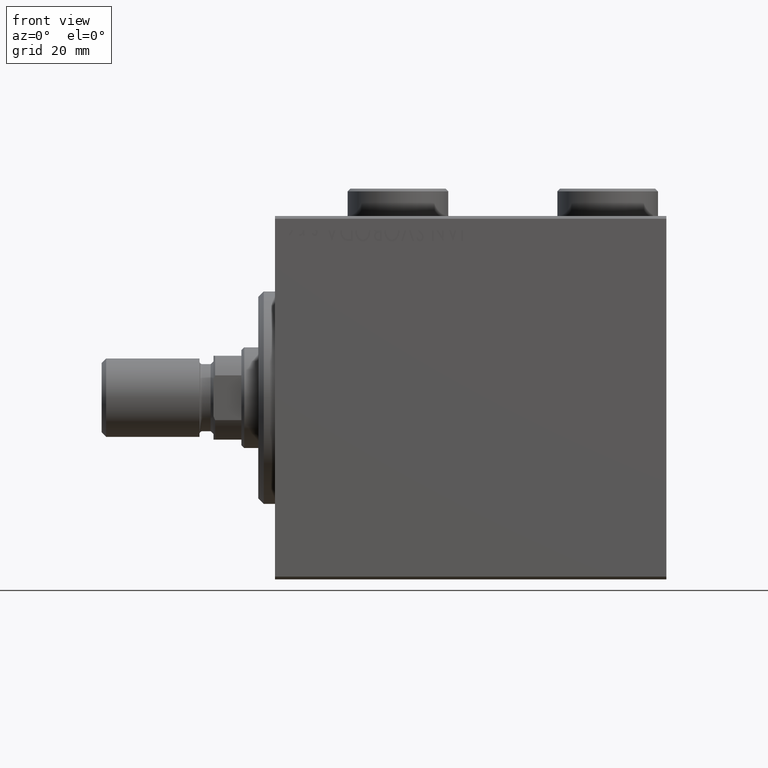
[diagram: clean part render]
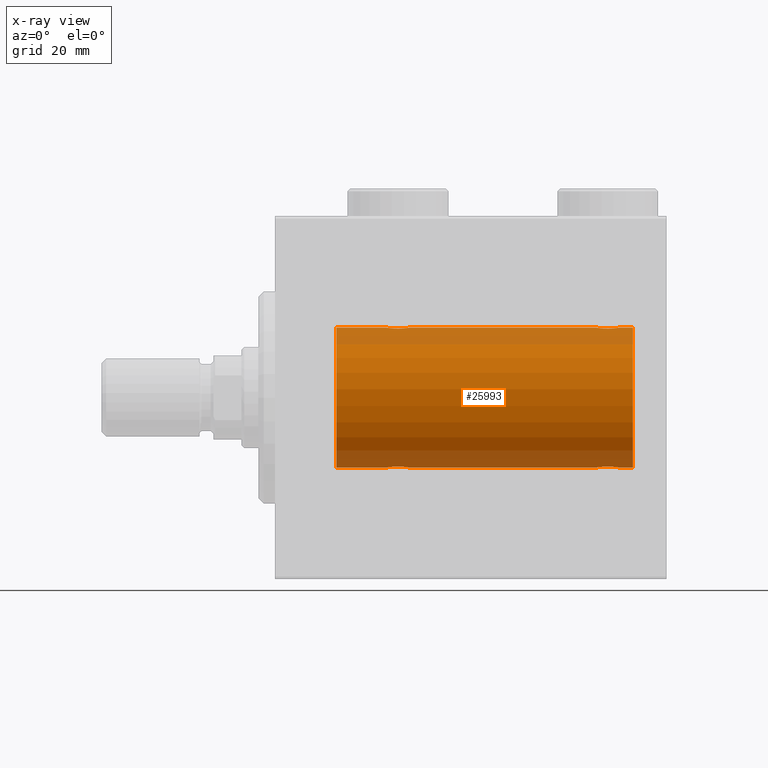
[diagram: x-ray — body ghosted, one internal face saturated and labeled with its STEP entity id]
A machine part, front view, then the same camera in x-ray: the body is ghosted and one INTERNAL B-rep face — a face not visible from any outside direction — is saturated and labeled: STEP entity #25993.
In plain terms, the highlighted cylindrical surface (partial cylindrical patch) has radius 12.5 mm, axis along (-1, -0, -0).
Its self-contained STEP definition (entity closure, byte-faithful):
#151 = CARTESIAN_POINT ( 'NONE',  ( 60.01961472357874783, -1.935716533151644381, -12.34923763528284724 ) ) ;
#622 = EDGE_CURVE ( 'NONE', #22544, #769, #40746, .T. ) ;
#769 = VERTEX_POINT ( 'NONE', #32887 ) ;
#772 = EDGE_CURVE ( 'NONE', #38798, #22544, #40110, .T. ) ;
#838 = CARTESIAN_POINT ( 'NONE',  ( 58.85574721202270609, -1.897913903092051324, -12.35518060345725289 ) ) ;
#1539 = B_SPLINE_CURVE_WITH_KNOTS ( 'NONE', 3,
 ( #25505, #24824, #39006, #32479, #18311, #39691, #7827, #25059, #28533, #18537, #25283, #22029, #151, #7376, #10649, #45999, #39464, #36210, #838, #4337, #29211, #43403, #3424, #11568, #38783, #12243, #4783, #22702 ),
 .UNSPECIFIED., .F., .F.,
 ( 4, 2, 2, 2, 2, 2, 2, 2, 2, 2, 2, 2, 2, 4 ),
 ( 0.006262980370572173230, 0.007045658964677369018, 0.007436998261729971249, 0.007828337558782573480, 0.008219676855835175711, 0.008611016152887777941, 0.009002355449940380172, 0.009393694746992982403, 0.009785034044045584634, 0.01017637334109818686, 0.01056771263815078910, 0.01095905193520339133, 0.01174173052930859579, 0.01252440912341380025 ),
 .UNSPECIFIED. ) ;
#1660 = CARTESIAN_POINT ( 'NONE',  ( 20.20214393531741237, -0.8858253204748024467, 12.46915613403961309 ) ) ;
#1817 = CARTESIAN_POINT ( 'NONE',  ( 22.51961472357873717, -1.935716533151642826, -12.34923763528285257 ) ) ;
#1842 = DIRECTION ( 'NONE',  ( -1.000000000000000000, -0.000000000000000000, -0.000000000000000000 ) ) ;
#1893 = CARTESIAN_POINT ( 'NONE',  ( 23.74662136620892383, -1.008535157355842538, 12.46157701909767646 ) ) ;
#2361 = CARTESIAN_POINT ( 'NONE',  ( 22.64425278797729391, -1.897913903092048438, 12.35518060345725111 ) ) ;
#2652 = CARTESIAN_POINT ( 'NONE',  ( 58.49654425923307599, -1.734959850168409812, 12.37922718965050706 ) ) ;
#3120 = CARTESIAN_POINT ( 'NONE',  ( 58.98038527642127349, -1.935716533151643493, 12.34923763528284901 ) ) ;
#3128 = DIRECTION ( 'NONE',  ( -1.000000000000000000, -0.000000000000000000, -0.000000000000000000 ) ) ;
#3424 = CARTESIAN_POINT ( 'NONE',  ( 58.17883287148557514, -1.507135374967702557, -12.40915432986587241 ) ) ;
#3733 = DIRECTION ( 'NONE',  ( -1.000000000000000000, -0.000000000000000000, -0.000000000000000000 ) ) ;
#3954 = DIRECTION ( 'NONE',  ( 0.000000000000000000, 0.000000000000000000, 1.000000000000000000 ) ) ;
#4135 = CARTESIAN_POINT ( 'NONE',  ( 64.00000000000000000, 0.000000000000000000, 12.50000000000000000 ) ) ;
#4337 = CARTESIAN_POINT ( 'NONE',  ( 58.61383846120568109, -1.797736511708066143, -12.37015393445320655 ) ) ;
#4743 = ORIENTED_EDGE ( 'NONE', *, *, #622, .T. ) ;
#4783 = CARTESIAN_POINT ( 'NONE',  ( 57.50000000000000000, -0.2646816682749856819, -12.50000000000000711 ) ) ;
#5103 = VERTEX_POINT ( 'NONE', #22440 ) ;
#5391 = ORIENTED_EDGE ( 'NONE', *, *, #45182, .T. ) ;
#5621 = VERTEX_POINT ( 'NONE', #34575 ) ;
#5716 = EDGE_CURVE ( 'NONE', #5621, #38798, #1539, .T. ) ;
#5804 = CARTESIAN_POINT ( 'NONE',  ( 21.86910032676576421, -2.000082296475566679, -12.33894933996983490 ) ) ;
#5827 = LINE ( 'NONE', #30467, #31189 ) ;
#5875 = CARTESIAN_POINT ( 'NONE',  ( 21.35356103036408371, -1.897190184049189599, 12.35529285772521391 ) ) ;
#5932 = CARTESIAN_POINT ( 'NONE',  ( 60.50099792098509255, -1.736403706023274651, 12.37902502246767966 ) ) ;
#6032 = CARTESIAN_POINT ( 'NONE',  ( 23.32299943107732432, -1.505544071529935080, -12.40934942683853848 ) ) ;
#6065 = DIRECTION ( 'NONE',  ( 0.000000000000000000, 0.000000000000000000, 1.000000000000000000 ) ) ;
#6201 = CIRCLE ( 'NONE', #18843, 12.50000000000000000 ) ;
#6705 = ORIENTED_EDGE ( 'NONE', *, *, #16767, .F. ) ;
#7021 = VERTEX_POINT ( 'NONE', #25628 ) ;
#7376 = CARTESIAN_POINT ( 'NONE',  ( 59.76391373102438109, -1.986793270638201214, -12.34112317291865324 ) ) ;
#7531 = CARTESIAN_POINT ( 'NONE',  ( 61.44665679898378130, -0.5275951738695680016, 12.49118442338578205 ) ) ;
#7827 = CARTESIAN_POINT ( 'NONE',  ( 61.00722151467995502, -1.321088093821077614, -12.43033959299025248 ) ) ;
#8250 = DIRECTION ( 'NONE',  ( -1.000000000000000000, -0.000000000000000000, -0.000000000000000000 ) ) ;
#8376 = DIRECTION ( 'NONE',  ( 0.000000000000000000, 0.000000000000000000, 1.000000000000000000 ) ) ;
#8628 = DIRECTION ( 'NONE',  ( -1.000000000000000000, -0.000000000000000000, -0.000000000000000000 ) ) ;
#8664 = CARTESIAN_POINT ( 'NONE',  ( 19.99999999999999645, -7.265724481447607133E-23, 12.50000000000000000 ) ) ;
#8781 = ORIENTED_EDGE ( 'NONE', *, *, #37475, .T. ) ;
#8890 = CARTESIAN_POINT ( 'NONE',  ( 22.88616153879432602, -1.797736511708064144, 12.37015393445320299 ) ) ;
#9307 = CARTESIAN_POINT ( 'NONE',  ( 10.99999999999999645, 0.000000000000000000, 0.000000000000000000 ) ) ;
#9432 = CARTESIAN_POINT ( 'NONE',  ( 60.01693726697627085, -1.936441098420706775, 12.34912369794528608 ) ) ;
#9528 = CARTESIAN_POINT ( 'NONE',  ( 23.79785606468258052, -0.8858253204748003373, -12.46915613403960954 ) ) ;
#10122 = CARTESIAN_POINT ( 'NONE',  ( 58.61125274202960611, -1.796480516834688679, 12.37033750336835425 ) ) ;
#10649 = CARTESIAN_POINT ( 'NONE',  ( 59.63340250451296498, -1.999916920503821194, -12.33897614545467825 ) ) ;
#11219 = VECTOR ( 'NONE', #8628, 1000.000000000000000 ) ;
#11266 = CARTESIAN_POINT ( 'NONE',  ( 61.50000000000000711, -7.215738317004035941E-16, 12.50000000000000000 ) ) ;
#11568 = CARTESIAN_POINT ( 'NONE',  ( 57.90255225308975895, -1.231226695485371669, -12.44059298055988094 ) ) ;
#12243 = CARTESIAN_POINT ( 'NONE',  ( 57.55334320101621159, -0.5275951738695725535, -12.49118442338578561 ) ) ;
#12373 = CARTESIAN_POINT ( 'NONE',  ( 61.50000000000000711, -7.215738317004035941E-16, 12.50000000000000000 ) ) ;
#12403 = CARTESIAN_POINT ( 'NONE',  ( 22.13089967323422869, -2.000082296475568011, 12.33894933996983134 ) ) ;
#12449 = CARTESIAN_POINT ( 'NONE',  ( 64.00000000000000000, 1.530808498934191521E-15, -12.50000000000000000 ) ) ;
#12561 = CARTESIAN_POINT ( 'NONE',  ( 21.73906502714393341, -1.987194304939077671, -12.34105826212746138 ) ) ;
#12790 = CARTESIAN_POINT ( 'NONE',  ( 20.67883287148555382, -1.507135374967699670, -12.40915432986587064 ) ) ;
#12921 = CARTESIAN_POINT ( 'NONE',  ( 57.99277848532008051, -1.321088093821082721, 12.43033959299025426 ) ) ;
#12957 = CARTESIAN_POINT ( 'NONE',  ( 57.50000000000000000, -7.266434456262306043E-23, 12.50000000000000000 ) ) ;
#13021 = CARTESIAN_POINT ( 'NONE',  ( 21.35574721202270254, -1.897913903092047327, -12.35518060345725289 ) ) ;
#14662 = CARTESIAN_POINT ( 'NONE',  ( 24.00000000000000000, -4.527848004210791175E-16, 12.50000000000000000 ) ) ;
#14751 = CARTESIAN_POINT ( 'NONE',  ( 60.82116712851446749, -1.507135374967701003, 12.40915432986587419 ) ) ;
#14758 = CARTESIAN_POINT ( 'NONE',  ( 64.00000000000000000, 0.000000000000000000, 12.50000000000000000 ) ) ;
#14907 = FACE_OUTER_BOUND ( 'NONE', #27749, .T. ) ;
#14942 = CARTESIAN_POINT ( 'NONE',  ( 64.00000000000000000, 1.530808498934191521E-15, -12.50000000000000000 ) ) ;
#15162 = LINE ( 'NONE', #14942, #11219 ) ;
#15580 = CARTESIAN_POINT ( 'NONE',  ( 20.00000000000000000, -0.2646816682749822958, -12.50000000000000000 ) ) ;
#15800 = EDGE_CURVE ( 'NONE', #769, #7021, #26873, .T. ) ;
#15875 = CARTESIAN_POINT ( 'NONE',  ( 19.99999999999999289, -0.2612140938986765581, 12.50000000000000000 ) ) ;
#16040 = CARTESIAN_POINT ( 'NONE',  ( 23.94744340572329833, -0.5247436444070328054, -12.49130933415156619 ) ) ;
#16113 = CARTESIAN_POINT ( 'NONE',  ( 23.94665679898380617, -0.5275951738695671134, 12.49118442338578561 ) ) ;
#16505 = CARTESIAN_POINT ( 'NONE',  ( 20.05334320101619738, -0.5275951738695662252, -12.49118442338578561 ) ) ;
#16576 = CARTESIAN_POINT ( 'NONE',  ( 23.59744774691023039, -1.231226695485369893, 12.44059298055988272 ) ) ;
#16640 = LINE ( 'NONE', #34297, #22199 ) ;
#16767 = EDGE_CURVE ( 'NONE', #43928, #26339, #6201, .T. ) ;
#17317 = CARTESIAN_POINT ( 'NONE',  ( 59.36659749548705634, -1.999916920503820750, 12.33897614545467469 ) ) ;
#17457 = VERTEX_POINT ( 'NONE', #12373 ) ;
#18001 = CARTESIAN_POINT ( 'NONE',  ( 61.24662136620892028, -1.008535157355842760, 12.46157701909767468 ) ) ;
#18311 = CARTESIAN_POINT ( 'NONE',  ( 61.23563078019578398, -1.002396200863560738, -12.46022444231050841 ) ) ;
#18537 = CARTESIAN_POINT ( 'NONE',  ( 60.50345574076694533, -1.734959850168411366, -12.37922718965050883 ) ) ;
#18843 = AXIS2_PLACEMENT_3D ( 'NONE', #27454, #44913, #6065 ) ;
#19138 = CARTESIAN_POINT ( 'NONE',  ( 20.49277848532005919, -1.321088093821079834, 12.43033959299025071 ) ) ;
#19368 = CARTESIAN_POINT ( 'NONE',  ( 20.05255659427670167, -0.5247436444070346928, 12.49130933415156619 ) ) ;
#19520 = CARTESIAN_POINT ( 'NONE',  ( 23.22027149897420628, -1.589951752150275732, -12.39868561261689273 ) ) ;
#19757 = CARTESIAN_POINT ( 'NONE',  ( 22.88874725797039389, -1.796480516834687347, -12.37033750336835247 ) ) ;
#19992 = CARTESIAN_POINT ( 'NONE',  ( 20.99900207901491811, -1.736403706023270654, -12.37902502246767966 ) ) ;
#20129 = CARTESIAN_POINT ( 'NONE',  ( 57.76436921980423733, -1.002396200863562736, 12.46022444231050663 ) ) ;
#20224 = CARTESIAN_POINT ( 'NONE',  ( 20.25337863379106551, -1.008535157355840761, -12.46157701909767646 ) ) ;
#20353 = CARTESIAN_POINT ( 'NONE',  ( 57.70214393531741592, -0.8858253204748025578, 12.46915613403960954 ) ) ;
#20810 = VERTEX_POINT ( 'NONE', #14662 ) ;
#21580 = ORIENTED_EDGE ( 'NONE', *, *, #42904, .T. ) ;
#21656 = CYLINDRICAL_SURFACE ( 'NONE', #39166, 12.50000000000000000 ) ;
#21850 = ORIENTED_EDGE ( 'NONE', *, *, #41816, .F. ) ;
#22029 = CARTESIAN_POINT ( 'NONE',  ( 60.14643896963591629, -1.897190184049190043, -12.35529285772521391 ) ) ;
#22199 = VECTOR ( 'NONE', #30813, 1000.000000000000000 ) ;
#22419 = B_SPLINE_CURVE_WITH_KNOTS ( 'NONE', 3,
 ( #8664, #15875, #19368, #1660, #40757, #30046, #19138, #34233, #44715, #23558, #34000, #5875, #44242, #44481, #37742, #12403, #41218, #40984, #2361, #8890, #23081, #27023, #33761, #16576, #1893, #16113, #30747, #26796 ),
 .UNSPECIFIED., .F., .F.,
 ( 4, 2, 2, 2, 2, 2, 2, 2, 2, 2, 2, 2, 2, 4 ),
 ( 0.006262980370572172363, 0.007045658964677369886, 0.007436998261729971249, 0.007828337558782571745, 0.008219676855835172241, 0.008611016152887774472, 0.009002355449940373233, 0.009393694746992975464, 0.009785034044045575960, 0.01017637334109817646, 0.01056771263815077869, 0.01095905193520337918, 0.01174173052930858538, 0.01252440912341379504 ),
 .UNSPECIFIED. ) ;
#22440 = CARTESIAN_POINT ( 'NONE',  ( 10.99999999999999645, 0.000000000000000000, 12.50000000000000000 ) ) ;
#22447 = ORIENTED_EDGE ( 'NONE', *, *, #15800, .T. ) ;
#22544 = VERTEX_POINT ( 'NONE', #45569 ) ;
#22702 = CARTESIAN_POINT ( 'NONE',  ( 57.50000000000000000, -7.533308568696040923E-15, -12.50000000000000000 ) ) ;
#23012 = CARTESIAN_POINT ( 'NONE',  ( 24.00000000000000000, 1.530808426277417854E-15, -12.50000000000000000 ) ) ;
#23081 = CARTESIAN_POINT ( 'NONE',  ( 23.00099792098508189, -1.736403706023272431, 12.37902502246767966 ) ) ;
#23166 = CARTESIAN_POINT ( 'NONE',  ( 64.00000000000000000, 1.530808498934191521E-15, -12.50000000000000000 ) ) ;
#23480 = CARTESIAN_POINT ( 'NONE',  ( 22.13340250451295077, -1.999916920503817197, -12.33897614545467469 ) ) ;
#23558 = CARTESIAN_POINT ( 'NONE',  ( 20.99654425923307954, -1.734959850168413587, 12.37922718965051061 ) ) ;
#23714 = CARTESIAN_POINT ( 'NONE',  ( 23.73563078019576977, -1.002396200863559184, -12.46022444231050663 ) ) ;
#24824 = CARTESIAN_POINT ( 'NONE',  ( 61.50000000000000711, -0.2612140938986743932, -12.50000000000000000 ) ) ;
#25059 = CARTESIAN_POINT ( 'NONE',  ( 60.82299943107732787, -1.505544071529934858, -12.40934942683853492 ) ) ;
#25283 = CARTESIAN_POINT ( 'NONE',  ( 60.38874725797041521, -1.796480516834690455, -12.37033750336835780 ) ) ;
#25505 = CARTESIAN_POINT ( 'NONE',  ( 61.50000000000000711, 1.530808426270318106E-15, -12.50000000000000000 ) ) ;
#25628 = CARTESIAN_POINT ( 'NONE',  ( 10.99999999999999645, 1.530808498934191521E-15, -12.50000000000000000 ) ) ;
#25993 = ADVANCED_FACE ( 'NONE', ( #14907 ), #21656, .F. ) ;
#26057 = DIRECTION ( 'NONE',  ( -1.000000000000000000, 0.000000000000000000, 0.000000000000000000 ) ) ;
#26339 = VERTEX_POINT ( 'NONE', #4135 ) ;
#26479 = ORIENTED_EDGE ( 'NONE', *, *, #5716, .T. ) ;
#26721 = CARTESIAN_POINT ( 'NONE',  ( 21.48306273302371494, -1.936441098420706997, -12.34912369794528431 ) ) ;
#26796 = CARTESIAN_POINT ( 'NONE',  ( 24.00000000000000000, -4.527848004210791175E-16, 12.50000000000000000 ) ) ;
#26873 = LINE ( 'NONE', #23166, #30700 ) ;
#27023 = CARTESIAN_POINT ( 'NONE',  ( 23.21854119541938033, -1.591305132013879131, 12.39851226212235957 ) ) ;
#27087 = CARTESIAN_POINT ( 'NONE',  ( 59.23608626897564733, -1.986793270638198106, 12.34112317291865146 ) ) ;
#27190 = CARTESIAN_POINT ( 'NONE',  ( 23.58981090228289546, -1.220538259806347225, -12.44075068685997287 ) ) ;
#27250 = ORIENTED_EDGE ( 'NONE', *, *, #37829, .F. ) ;
#27454 = CARTESIAN_POINT ( 'NONE',  ( 64.00000000000000000, 0.000000000000000000, 0.000000000000000000 ) ) ;
#27749 = EDGE_LOOP ( 'NONE', ( #6705, #21580, #26479, #28196, #4743, #22447, #33649, #27250, #5391, #21850, #8781, #38200 ) ) ;
#28006 = B_SPLINE_CURVE_WITH_KNOTS ( 'NONE', 3,
 ( #38031, #30582, #41974, #20353, #20129, #44777, #12921, #34524, #41748, #2652, #10122, #34992, #3120, #27087, #17317, #41285, #31046, #9432, #45698, #37800, #5932, #39165, #14751, #43113, #18001, #7531, #32165, #11266 ),
 .UNSPECIFIED., .F., .F.,
 ( 4, 2, 2, 2, 2, 2, 2, 2, 2, 2, 2, 2, 2, 4 ),
 ( 0.006262980370572174098, 0.007045658964677370753, 0.007436998261729972984, 0.007828337558782575215, 0.008219676855835175711, 0.008611016152887777941, 0.009002355449940380172, 0.009393694746992982403, 0.009785034044045584634, 0.01017637334109818686, 0.01056771263815078910, 0.01095905193520338959, 0.01174173052930859232, 0.01252440912341379678 ),
 .UNSPECIFIED. ) ;
#28196 = ORIENTED_EDGE ( 'NONE', *, *, #772, .T. ) ;
#28533 = CARTESIAN_POINT ( 'NONE',  ( 60.72027149897421339, -1.589951752150274844, -12.39868561261689273 ) ) ;
#29074 = CARTESIAN_POINT ( 'NONE',  ( 64.00000000000000000, 0.000000000000000000, 0.000000000000000000 ) ) ;
#29162 = CIRCLE ( 'NONE', #38085, 12.50000000000000000 ) ;
#29211 = CARTESIAN_POINT ( 'NONE',  ( 58.49900207901491456, -1.736403706023276650, -12.37902502246767789 ) ) ;
#29224 = VECTOR ( 'NONE', #8250, 1000.000000000000000 ) ;
#30046 = CARTESIAN_POINT ( 'NONE',  ( 20.41018909771710454, -1.220538259806349446, 12.44075068685996932 ) ) ;
#30134 = DIRECTION ( 'NONE',  ( -1.000000000000000000, -0.000000000000000000, -0.000000000000000000 ) ) ;
#30212 = CARTESIAN_POINT ( 'NONE',  ( 22.26391373102435622, -1.986793270638196551, -12.34112317291864791 ) ) ;
#30467 = CARTESIAN_POINT ( 'NONE',  ( 64.00000000000000000, 0.000000000000000000, 12.50000000000000000 ) ) ;
#30582 = CARTESIAN_POINT ( 'NONE',  ( 57.50000000000001421, -0.2612140938986763361, 12.50000000000000355 ) ) ;
#30700 = VECTOR ( 'NONE', #30134, 1000.000000000000000 ) ;
#30747 = CARTESIAN_POINT ( 'NONE',  ( 24.00000000000000000, -0.2646816682749787430, 12.50000000000000178 ) ) ;
#30813 = DIRECTION ( 'NONE',  ( -1.000000000000000000, -0.000000000000000000, -0.000000000000000000 ) ) ;
#31046 = CARTESIAN_POINT ( 'NONE',  ( 59.76093497285608436, -1.987194304939078116, 12.34105826212746138 ) ) ;
#31162 = CARTESIAN_POINT ( 'NONE',  ( 19.99999999999999645, -7.265724481447607133E-23, 12.50000000000000000 ) ) ;
#31189 = VECTOR ( 'NONE', #1842, 1000.000000000000000 ) ;
#31581 = VERTEX_POINT ( 'NONE', #12957 ) ;
#32165 = CARTESIAN_POINT ( 'NONE',  ( 61.50000000000000000, -0.2646816682749791316, 12.50000000000000000 ) ) ;
#32479 = CARTESIAN_POINT ( 'NONE',  ( 61.29785606468259118, -0.8858253204748017806, -12.46915613403961309 ) ) ;
#32887 = CARTESIAN_POINT ( 'NONE',  ( 19.99999999999999645, -3.213890523917628161E-15, -12.50000000000000000 ) ) ;
#33422 = VECTOR ( 'NONE', #3128, 1000.000000000000000 ) ;
#33649 = ORIENTED_EDGE ( 'NONE', *, *, #45609, .T. ) ;
#33690 = CARTESIAN_POINT ( 'NONE',  ( 22.64643896963591985, -1.897190184049187378, -12.35529285772521924 ) ) ;
#33761 = CARTESIAN_POINT ( 'NONE',  ( 23.32116712851443907, -1.507135374967700558, 12.40915432986587064 ) ) ;
#34000 = CARTESIAN_POINT ( 'NONE',  ( 21.11125274202960256, -1.796480516834690233, 12.37033750336835958 ) ) ;
#34157 = CARTESIAN_POINT ( 'NONE',  ( 20.40255225308977671, -1.231226695485369893, -12.44059298055988627 ) ) ;
#34233 = CARTESIAN_POINT ( 'NONE',  ( 20.67700056892266502, -1.505544071529935968, 12.40934942683853670 ) ) ;
#34297 = CARTESIAN_POINT ( 'NONE',  ( 64.00000000000000000, 0.000000000000000000, 12.50000000000000000 ) ) ;
#34388 = CARTESIAN_POINT ( 'NONE',  ( 20.78145880458060901, -1.591305132013878021, -12.39851226212236313 ) ) ;
#34524 = CARTESIAN_POINT ( 'NONE',  ( 58.17700056892267924, -1.505544071529938632, 12.40934942683853670 ) ) ;
#34575 = CARTESIAN_POINT ( 'NONE',  ( 61.50000000000000711, 1.530808426270318106E-15, -12.50000000000000000 ) ) ;
#34774 = EDGE_CURVE ( 'NONE', #26339, #17457, #16640, .T. ) ;
#34992 = CARTESIAN_POINT ( 'NONE',  ( 58.85356103036409081, -1.897190184049188932, 12.35529285772521924 ) ) ;
#35940 = CARTESIAN_POINT ( 'NONE',  ( 64.00000000000000000, 1.530808498934191521E-15, -12.50000000000000000 ) ) ;
#36210 = CARTESIAN_POINT ( 'NONE',  ( 58.98306273302370784, -1.936441098420709883, -12.34912369794528786 ) ) ;
#37475 = EDGE_CURVE ( 'NONE', #31581, #17457, #28006, .T. ) ;
#37742 = CARTESIAN_POINT ( 'NONE',  ( 21.86659749548704212, -1.999916920503820306, 12.33897614545467647 ) ) ;
#37800 = CARTESIAN_POINT ( 'NONE',  ( 60.38616153879433313, -1.797736511708064144, 12.37015393445320655 ) ) ;
#37829 = EDGE_CURVE ( 'NONE', #38908, #5103, #5827, .T. ) ;
#37896 = CARTESIAN_POINT ( 'NONE',  ( 23.50722151467992660, -1.321088093821078502, -12.43033959299025248 ) ) ;
#38031 = CARTESIAN_POINT ( 'NONE',  ( 57.50000000000000000, -7.266434456262306043E-23, 12.50000000000000000 ) ) ;
#38085 = AXIS2_PLACEMENT_3D ( 'NONE', #9307, #26057, #8376 ) ;
#38200 = ORIENTED_EDGE ( 'NONE', *, *, #34774, .F. ) ;
#38783 = CARTESIAN_POINT ( 'NONE',  ( 57.75337863379106551, -1.008535157355846090, -12.46157701909767290 ) ) ;
#38798 = VERTEX_POINT ( 'NONE', #40934 ) ;
#38908 = VERTEX_POINT ( 'NONE', #31162 ) ;
#38937 = LINE ( 'NONE', #14758, #33422 ) ;
#39006 = CARTESIAN_POINT ( 'NONE',  ( 61.44744340572331254, -0.5247436444070329165, -12.49130933415156797 ) ) ;
#39165 = CARTESIAN_POINT ( 'NONE',  ( 60.71854119541938388, -1.591305132013881796, 12.39851226212235957 ) ) ;
#39166 = AXIS2_PLACEMENT_3D ( 'NONE', #29074, #3733, #3954 ) ;
#39464 = CARTESIAN_POINT ( 'NONE',  ( 59.23906502714393696, -1.987194304939080336, -12.34105826212745960 ) ) ;
#39691 = CARTESIAN_POINT ( 'NONE',  ( 61.08981090228289901, -1.220538259806349446, -12.44075068685996932 ) ) ;
#40110 = LINE ( 'NONE', #12449, #29224 ) ;
#40746 = B_SPLINE_CURVE_WITH_KNOTS ( 'NONE', 3,
 ( #23012, #41390, #16040, #9528, #23714, #27190, #37896, #6032, #19520, #44408, #19757, #33690, #1817, #30212, #23480, #5804, #12561, #26721, #13021, #44641, #19992, #34388, #12790, #34157, #20224, #16505, #15580, #45115 ),
 .UNSPECIFIED., .F., .F.,
 ( 4, 2, 2, 2, 2, 2, 2, 2, 2, 2, 2, 2, 2, 4 ),
 ( 0.006262980370572176700, 0.007045658964677373355, 0.007436998261729973851, 0.007828337558782575215, 0.008219676855835175711, 0.008611016152887776207, 0.009002355449940376703, 0.009393694746992977199, 0.009785034044045577695, 0.01017637334109817646, 0.01056771263815077869, 0.01095905193520337745, 0.01174173052930858711, 0.01252440912341379504 ),
 .UNSPECIFIED. ) ;
#40757 = CARTESIAN_POINT ( 'NONE',  ( 20.26436921980423023, -1.002396200863561404, 12.46022444231050841 ) ) ;
#40934 = CARTESIAN_POINT ( 'NONE',  ( 57.50000000000000000, -7.533308568696040923E-15, -12.50000000000000000 ) ) ;
#40984 = CARTESIAN_POINT ( 'NONE',  ( 22.51693726697628151, -1.936441098420708773, 12.34912369794528608 ) ) ;
#41218 = CARTESIAN_POINT ( 'NONE',  ( 22.26093497285607370, -1.987194304939079448, 12.34105826212746138 ) ) ;
#41285 = CARTESIAN_POINT ( 'NONE',  ( 59.63089967323423934, -2.000082296475567567, 12.33894933996983134 ) ) ;
#41390 = CARTESIAN_POINT ( 'NONE',  ( 24.00000000000000711, -0.2612140938986747818, -12.50000000000000533 ) ) ;
#41748 = CARTESIAN_POINT ( 'NONE',  ( 58.27972850102579372, -1.589951752150273068, 12.39868561261688917 ) ) ;
#41816 = EDGE_CURVE ( 'NONE', #31581, #20810, #38937, .T. ) ;
#41974 = CARTESIAN_POINT ( 'NONE',  ( 57.55255659427669457, -0.5247436444070353589, 12.49130933415156441 ) ) ;
#42904 = EDGE_CURVE ( 'NONE', #43928, #5621, #15162, .T. ) ;
#43113 = CARTESIAN_POINT ( 'NONE',  ( 61.09744774691021263, -1.231226695485369671, 12.44059298055987917 ) ) ;
#43403 = CARTESIAN_POINT ( 'NONE',  ( 58.28145880458064454, -1.591305132013884238, -12.39851226212236313 ) ) ;
#43928 = VERTEX_POINT ( 'NONE', #35940 ) ;
#44242 = CARTESIAN_POINT ( 'NONE',  ( 21.48038527642126283, -1.935716533151644825, 12.34923763528284724 ) ) ;
#44408 = CARTESIAN_POINT ( 'NONE',  ( 23.00345574076691335, -1.734959850168410256, -12.37922718965050528 ) ) ;
#44481 = CARTESIAN_POINT ( 'NONE',  ( 21.73608626897565799, -1.986793270638199438, 12.34112317291865502 ) ) ;
#44641 = CARTESIAN_POINT ( 'NONE',  ( 21.11383846120566332, -1.797736511708062368, -12.37015393445320122 ) ) ;
#44715 = CARTESIAN_POINT ( 'NONE',  ( 20.77972850102578661, -1.589951752150277287, 12.39868561261688917 ) ) ;
#44777 = CARTESIAN_POINT ( 'NONE',  ( 57.91018909771712231, -1.220538259806350112, 12.44075068685996932 ) ) ;
#44913 = DIRECTION ( 'NONE',  ( -1.000000000000000000, 0.000000000000000000, 0.000000000000000000 ) ) ;
#45115 = CARTESIAN_POINT ( 'NONE',  ( 19.99999999999999645, -3.213890523917628161E-15, -12.50000000000000000 ) ) ;
#45182 = EDGE_CURVE ( 'NONE', #38908, #20810, #22419, .T. ) ;
#45569 = CARTESIAN_POINT ( 'NONE',  ( 24.00000000000000000, 1.530808426277417854E-15, -12.50000000000000000 ) ) ;
#45609 = EDGE_CURVE ( 'NONE', #7021, #5103, #29162, .T. ) ;
#45698 = CARTESIAN_POINT ( 'NONE',  ( 60.14425278797731522, -1.897913903092049548, 12.35518060345725289 ) ) ;
#45999 = CARTESIAN_POINT ( 'NONE',  ( 59.36910032676577487, -2.000082296475570232, -12.33894933996983312 ) ) ;